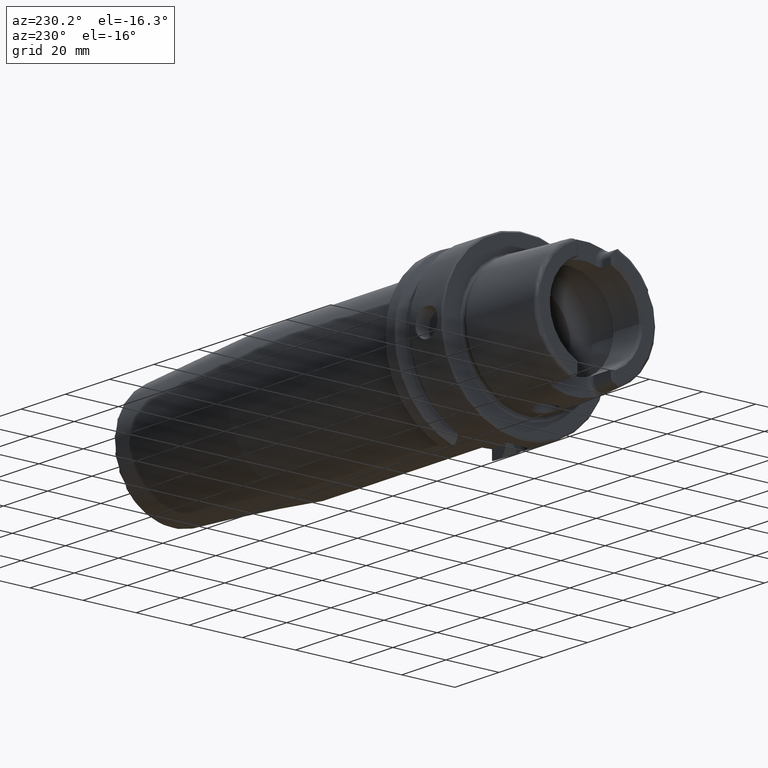
[diagram: clean part render]
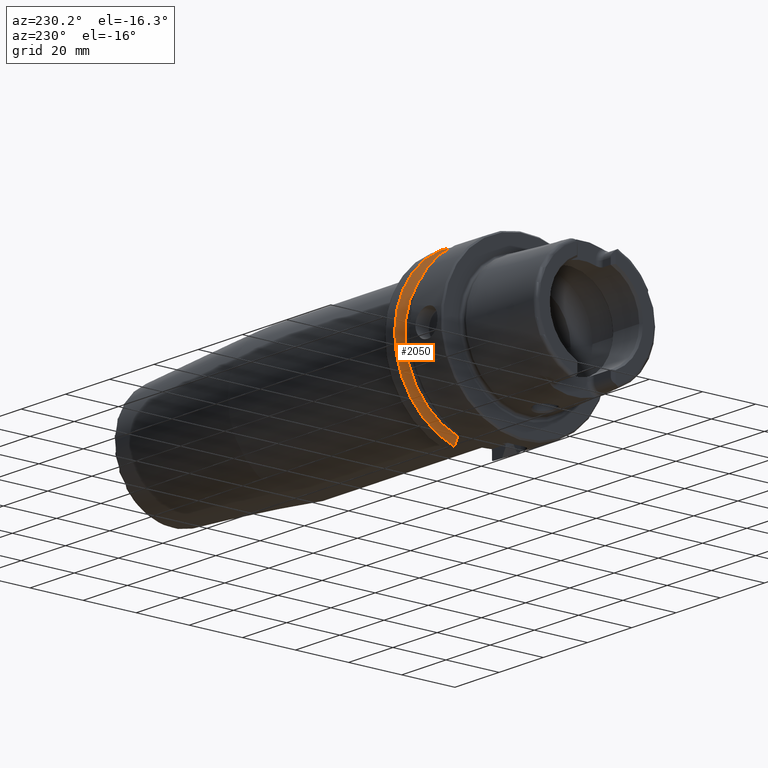
[diagram: same view with one face highlighted and labeled with its STEP entity id]
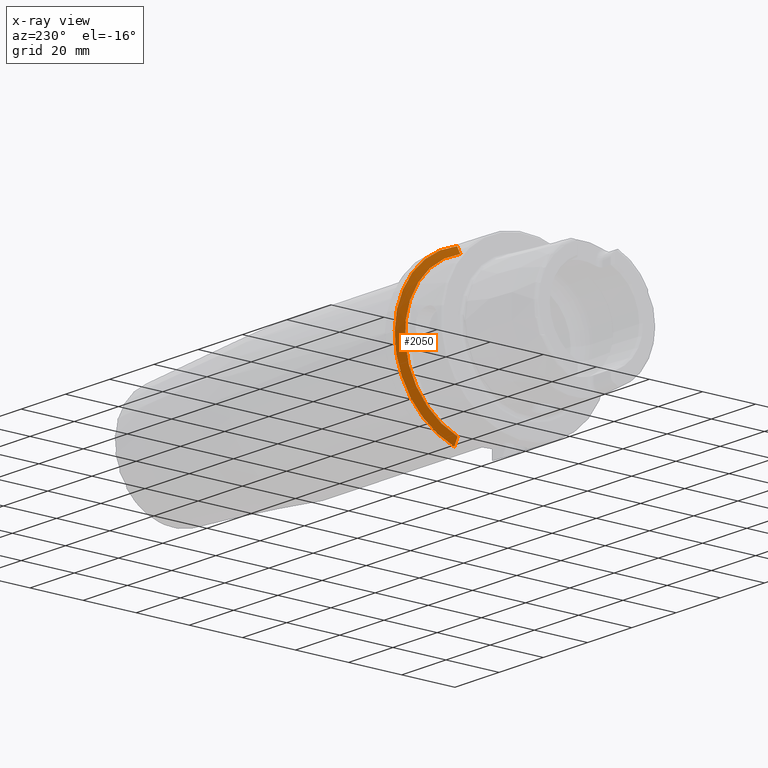
[diagram: x-ray of the same camera — body ghosted, the highlighted face saturated]
A machine part, auxiliary view. The second image highlights one B-rep face of the part: STEP entity #2050.
The next image is the same camera in x-ray: the body ghosted, the highlighted face saturated — about 0% of this face is hidden behind the body in this view.
In plain terms, the highlighted conical surface has half-angle 60 deg.
Its self-contained STEP definition (entity closure, byte-faithful):
#24=(
BOUNDED_CURVE()
B_SPLINE_CURVE(2,(#4043,#4044,#4045),.UNSPECIFIED.,.F.,.F.)
B_SPLINE_CURVE_WITH_KNOTS((3,3),(0.,0.311314369989023),.UNSPECIFIED.)
CURVE()
GEOMETRIC_REPRESENTATION_ITEM()
RATIONAL_B_SPLINE_CURVE((1.,1.00102053193238,1.))
REPRESENTATION_ITEM('')
);
#27=(
BOUNDED_CURVE()
B_SPLINE_CURVE(2,(#4240,#4241,#4242),.UNSPECIFIED.,.F.,.F.)
B_SPLINE_CURVE_WITH_KNOTS((3,3),(0.,0.308905667770379),.UNSPECIFIED.)
CURVE()
GEOMETRIC_REPRESENTATION_ITEM()
RATIONAL_B_SPLINE_CURVE((1.,1.00099999355179,1.))
REPRESENTATION_ITEM('')
);
#286=FACE_OUTER_BOUND('',#410,.T.);
#410=EDGE_LOOP('',(#1695,#1696,#1697,#1698));
#747=CIRCLE('',#2267,31.5);
#751=CIRCLE('',#2275,28.8975952641916);
#939=VERTEX_POINT('',#4040);
#940=VERTEX_POINT('',#4042);
#966=VERTEX_POINT('',#4224);
#969=VERTEX_POINT('',#4238);
#1195=EDGE_CURVE('',#940,#939,#24,.T.);
#1235=EDGE_CURVE('',#940,#966,#747,.T.);
#1242=EDGE_CURVE('',#939,#969,#751,.T.);
#1243=EDGE_CURVE('',#969,#966,#27,.T.);
#1695=ORIENTED_EDGE('',*,*,#1195,.T.);
#1696=ORIENTED_EDGE('',*,*,#1242,.T.);
#1697=ORIENTED_EDGE('',*,*,#1243,.T.);
#1698=ORIENTED_EDGE('',*,*,#1235,.F.);
#1974=CONICAL_SURFACE('',#2274,30.1987976320958,1.0471975511966);
#2050=ADVANCED_FACE('',(#286),#1974,.T.);
#2267=AXIS2_PLACEMENT_3D('',#4225,#2738,#2739);
#2274=AXIS2_PLACEMENT_3D('',#4237,#2755,#2756);
#2275=AXIS2_PLACEMENT_3D('',#4239,#2757,#2758);
#2738=DIRECTION('center_axis',(1.,0.,0.));
#2739=DIRECTION('ref_axis',(0.,0.,-1.));
#2755=DIRECTION('center_axis',(1.,0.,0.));
#2756=DIRECTION('ref_axis',(0.,1.,0.));
#2757=DIRECTION('center_axis',(1.,0.,0.));
#2758=DIRECTION('ref_axis',(0.,0.,-1.));
#4040=CARTESIAN_POINT('',(19.875,9.,-27.4603534582684));
#4042=CARTESIAN_POINT('',(21.3774990747593,9.,-30.1869176962472));
#4043=CARTESIAN_POINT('Ctrl Pts',(21.3774990747593,9.,-30.1869176962472));
#4044=CARTESIAN_POINT('Ctrl Pts',(20.5907174110267,9.,-28.7648946319029));
#4045=CARTESIAN_POINT('Ctrl Pts',(19.875,9.,-27.4603534582684));
#4224=CARTESIAN_POINT('',(21.3774990747593,8.,30.4671954731642));
#4225=CARTESIAN_POINT('Origin',(21.3774990747593,0.,0.));
#4237=CARTESIAN_POINT('Origin',(20.6262495373797,0.,0.));
#4238=CARTESIAN_POINT('',(19.875,8.,27.7681654426977));
#4239=CARTESIAN_POINT('Origin',(19.875,0.,0.));
#4240=CARTESIAN_POINT('Ctrl Pts',(19.875,8.,27.7681654426977));
#4241=CARTESIAN_POINT('Ctrl Pts',(20.5914314297926,8.,29.0595327079868));
#4242=CARTESIAN_POINT('Ctrl Pts',(21.3774990747593,8.,30.4671954731642));